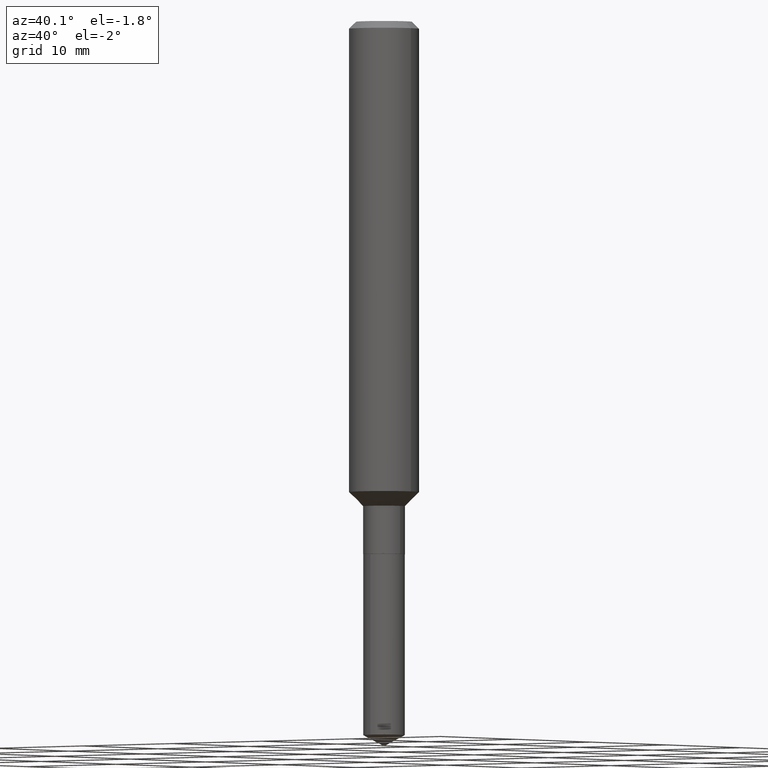
[diagram: clean part render]
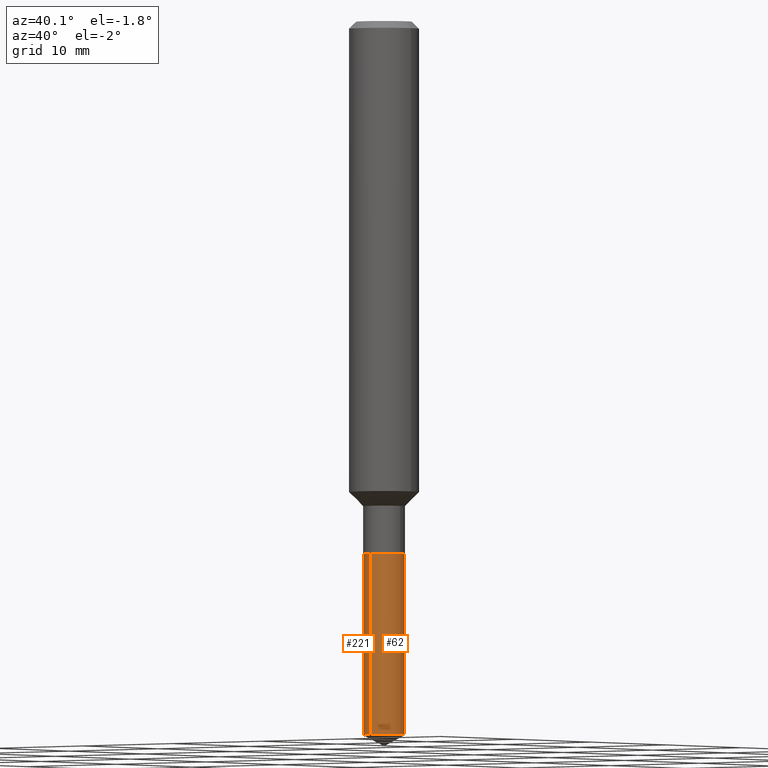
[diagram: same view with one multi-face feature highlighted, each face labeled with its STEP entity id]
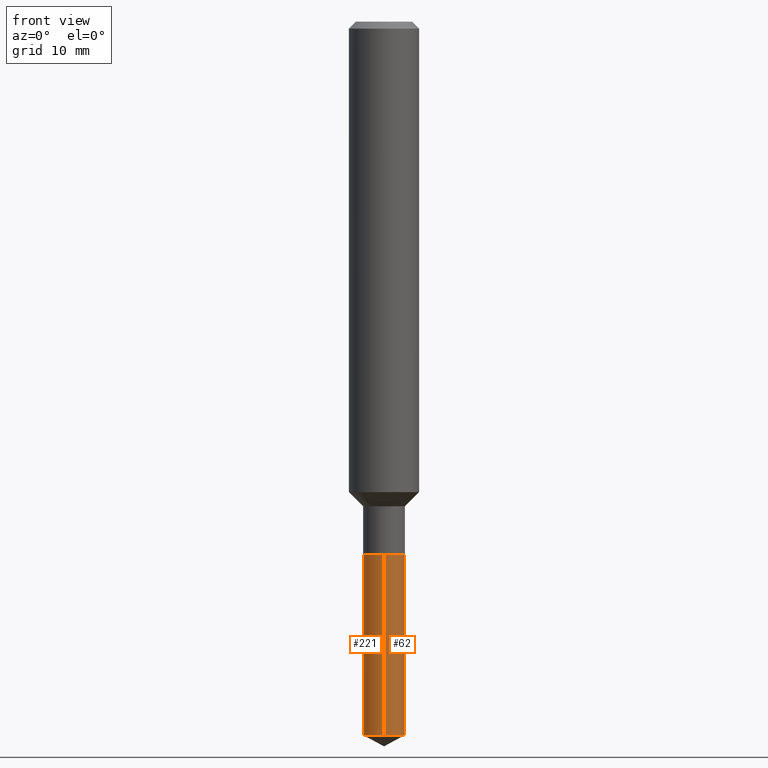
[diagram: same view with one multi-face feature highlighted, each face labeled with its STEP entity id]
A machine part, auxiliary view. The highlighted faces form ONE feature: a constant-radius fillet chain: 2 tangent blend faces with common blend radius 1.7856 mm. The faces share edges in the B-rep.
A second angle (front view) of the same feature is appended — it is thin or edge-on in the first view.
Their STEP definitions:
[1] entity #62 (Cylinder):
#4 = CIRCLE ( 'NONE', #474, 0.07029999999999998750 ) ;
#14 = VECTOR ( 'NONE', #178, 39.37007874015748143 ) ;
#20 = EDGE_CURVE ( 'NONE', #354, #123, #407, .T. ) ;
#25 = EDGE_CURVE ( 'NONE', #384, #354, #4, .T. ) ;
#31 = CARTESIAN_POINT ( 'NONE',  ( 4.387415585176754180E-29, -6.264066670018488385E-15, -1.794100000000000028 ) ) ;
#45 = VECTOR ( 'NONE', #65, 39.37007874015748143 ) ;
#57 = DIRECTION ( 'NONE',  ( -2.462620936487476637E-29, 3.466918512011564751E-15, 1.000000000000000000 ) ) ;
#62 = ADVANCED_FACE ( 'NONE', ( #94 ), #242, .T. ) ;
#65 = DIRECTION ( 'NONE',  ( -2.462620936487476637E-29, 3.466918512011564751E-15, 1.000000000000000000 ) ) ;
#79 = EDGE_LOOP ( 'NONE', ( #488, #490, #121, #311 ) ) ;
#94 = FACE_OUTER_BOUND ( 'NONE', #79, .T. ) ;
#121 = ORIENTED_EDGE ( 'NONE', *, *, #416, .F. ) ;
#123 = VERTEX_POINT ( 'NONE', #268 ) ;
#137 = DIRECTION ( 'NONE',  ( -2.462620936487476637E-29, 3.466918512011564751E-15, 1.000000000000000000 ) ) ;
#138 = CARTESIAN_POINT ( 'NONE',  ( 5.888188072765674543E-29, -8.376879016591395070E-15, -2.403520826954198331 ) ) ;
#174 = CARTESIAN_POINT ( 'NONE',  ( -4.909022762413006725E-16, -0.07030000000000626026, -1.794099999999999806 ) ) ;
#178 = DIRECTION ( 'NONE',  ( -2.462620936487476637E-29, 3.466918512011564751E-15, 1.000000000000000000 ) ) ;
#209 = DIRECTION ( 'NONE',  ( -6.982962677686265133E-15, -1.000000000000000000, 3.885985766236506175E-15 ) ) ;
#242 = CYLINDRICAL_SURFACE ( 'NONE', #285, 0.07029999999999998750 ) ;
#265 = DIRECTION ( 'NONE',  ( -6.982962677686266711E-15, -1.000000000000000000, 3.885985766236506175E-15 ) ) ;
#268 = CARTESIAN_POINT ( 'NONE',  ( 4.995115432394092106E-16, 0.07029999999999372862, -1.794100000000000472 ) ) ;
#273 = CARTESIAN_POINT ( 'NONE',  ( -4.909022762412853883E-16, -0.07030000000000832805, -2.403520826954198331 ) ) ;
#285 = AXIS2_PLACEMENT_3D ( 'NONE', #394, #57, #265 ) ;
#294 = CIRCLE ( 'NONE', #442, 0.07030000000000000138 ) ;
#295 = LINE ( 'NONE', #481, #45 ) ;
#311 = ORIENTED_EDGE ( 'NONE', *, *, #486, .F. ) ;
#321 = DIRECTION ( 'NONE',  ( -6.982962677686265133E-15, -1.000000000000000000, 3.885985766236505386E-15 ) ) ;
#354 = VERTEX_POINT ( 'NONE', #432 ) ;
#370 = DIRECTION ( 'NONE',  ( -2.462620936487476637E-29, 3.466918512011564751E-15, 1.000000000000000000 ) ) ;
#384 = VERTEX_POINT ( 'NONE', #273 ) ;
#394 = CARTESIAN_POINT ( 'NONE',  ( 4.387415585176754180E-29, -6.264066670018488385E-15, -1.794100000000000028 ) ) ;
#404 = VERTEX_POINT ( 'NONE', #174 ) ;
#407 = LINE ( 'NONE', #485, #14 ) ;
#416 = EDGE_CURVE ( 'NONE', #404, #123, #294, .T. ) ;
#432 = CARTESIAN_POINT ( 'NONE',  ( 4.995115432394089148E-16, 0.07029999999999159144, -2.403520826954198775 ) ) ;
#442 = AXIS2_PLACEMENT_3D ( 'NONE', #31, #137, #321 ) ;
#474 = AXIS2_PLACEMENT_3D ( 'NONE', #138, #370, #209 ) ;
#481 = CARTESIAN_POINT ( 'NONE',  ( -4.909022762413005739E-16, -0.07030000000000626026, -1.794099999999999806 ) ) ;
#485 = CARTESIAN_POINT ( 'NONE',  ( 4.995115432393941236E-16, 0.07029999999999372862, -1.794100000000000472 ) ) ;
#486 = EDGE_CURVE ( 'NONE', #384, #404, #295, .T. ) ;
#488 = ORIENTED_EDGE ( 'NONE', *, *, #25, .T. ) ;
#490 = ORIENTED_EDGE ( 'NONE', *, *, #20, .T. ) ;
[2] entity #221 (Cylinder):
#2 = EDGE_CURVE ( 'NONE', #123, #404, #293, .T. ) ;
#14 = VECTOR ( 'NONE', #178, 39.37007874015748143 ) ;
#16 = AXIS2_PLACEMENT_3D ( 'NONE', #329, #102, #171 ) ;
#20 = EDGE_CURVE ( 'NONE', #354, #123, #407, .T. ) ;
#45 = VECTOR ( 'NONE', #65, 39.37007874015748143 ) ;
#65 = DIRECTION ( 'NONE',  ( -2.462620936487476637E-29, 3.466918512011564751E-15, 1.000000000000000000 ) ) ;
#83 = AXIS2_PLACEMENT_3D ( 'NONE', #318, #477, #328 ) ;
#84 = CIRCLE ( 'NONE', #16, 0.07029999999999998750 ) ;
#102 = DIRECTION ( 'NONE',  ( -2.462620936487476637E-29, 3.466918512011564751E-15, 1.000000000000000000 ) ) ;
#123 = VERTEX_POINT ( 'NONE', #268 ) ;
#124 = CARTESIAN_POINT ( 'NONE',  ( 4.387415585176754180E-29, -6.264066670018488385E-15, -1.794100000000000028 ) ) ;
#171 = DIRECTION ( 'NONE',  ( -6.982962677686265133E-15, -1.000000000000000000, 3.885985766236506175E-15 ) ) ;
#174 = CARTESIAN_POINT ( 'NONE',  ( -4.909022762413006725E-16, -0.07030000000000626026, -1.794099999999999806 ) ) ;
#178 = DIRECTION ( 'NONE',  ( -2.462620936487476637E-29, 3.466918512011564751E-15, 1.000000000000000000 ) ) ;
#191 = ORIENTED_EDGE ( 'NONE', *, *, #20, .F. ) ;
#197 = DIRECTION ( 'NONE',  ( -6.982962677686266711E-15, -1.000000000000000000, 3.885985766236506175E-15 ) ) ;
#216 = AXIS2_PLACEMENT_3D ( 'NONE', #124, #245, #197 ) ;
#221 = ADVANCED_FACE ( 'NONE', ( #258 ), #395, .T. ) ;
#245 = DIRECTION ( 'NONE',  ( -2.462620936487476637E-29, 3.466918512011564751E-15, 1.000000000000000000 ) ) ;
#256 = ORIENTED_EDGE ( 'NONE', *, *, #486, .T. ) ;
#258 = FACE_OUTER_BOUND ( 'NONE', #468, .T. ) ;
#266 = ORIENTED_EDGE ( 'NONE', *, *, #2, .F. ) ;
#268 = CARTESIAN_POINT ( 'NONE',  ( 4.995115432394092106E-16, 0.07029999999999372862, -1.794100000000000472 ) ) ;
#273 = CARTESIAN_POINT ( 'NONE',  ( -4.909022762412853883E-16, -0.07030000000000832805, -2.403520826954198331 ) ) ;
#293 = CIRCLE ( 'NONE', #83, 0.07030000000000000138 ) ;
#295 = LINE ( 'NONE', #481, #45 ) ;
#318 = CARTESIAN_POINT ( 'NONE',  ( 4.387415585176754180E-29, -6.264066670018488385E-15, -1.794100000000000028 ) ) ;
#328 = DIRECTION ( 'NONE',  ( -6.982962677686265133E-15, -1.000000000000000000, 3.885985766236505386E-15 ) ) ;
#329 = CARTESIAN_POINT ( 'NONE',  ( 5.888188072765674543E-29, -8.376879016591395070E-15, -2.403520826954198331 ) ) ;
#354 = VERTEX_POINT ( 'NONE', #432 ) ;
#368 = ORIENTED_EDGE ( 'NONE', *, *, #467, .T. ) ;
#384 = VERTEX_POINT ( 'NONE', #273 ) ;
#395 = CYLINDRICAL_SURFACE ( 'NONE', #216, 0.07029999999999998750 ) ;
#404 = VERTEX_POINT ( 'NONE', #174 ) ;
#407 = LINE ( 'NONE', #485, #14 ) ;
#432 = CARTESIAN_POINT ( 'NONE',  ( 4.995115432394089148E-16, 0.07029999999999159144, -2.403520826954198775 ) ) ;
#467 = EDGE_CURVE ( 'NONE', #354, #384, #84, .T. ) ;
#468 = EDGE_LOOP ( 'NONE', ( #191, #368, #256, #266 ) ) ;
#477 = DIRECTION ( 'NONE',  ( -2.462620936487476637E-29, 3.466918512011564751E-15, 1.000000000000000000 ) ) ;
#481 = CARTESIAN_POINT ( 'NONE',  ( -4.909022762413005739E-16, -0.07030000000000626026, -1.794099999999999806 ) ) ;
#485 = CARTESIAN_POINT ( 'NONE',  ( 4.995115432393941236E-16, 0.07029999999999372862, -1.794100000000000472 ) ) ;
#486 = EDGE_CURVE ( 'NONE', #384, #404, #295, .T. ) ;